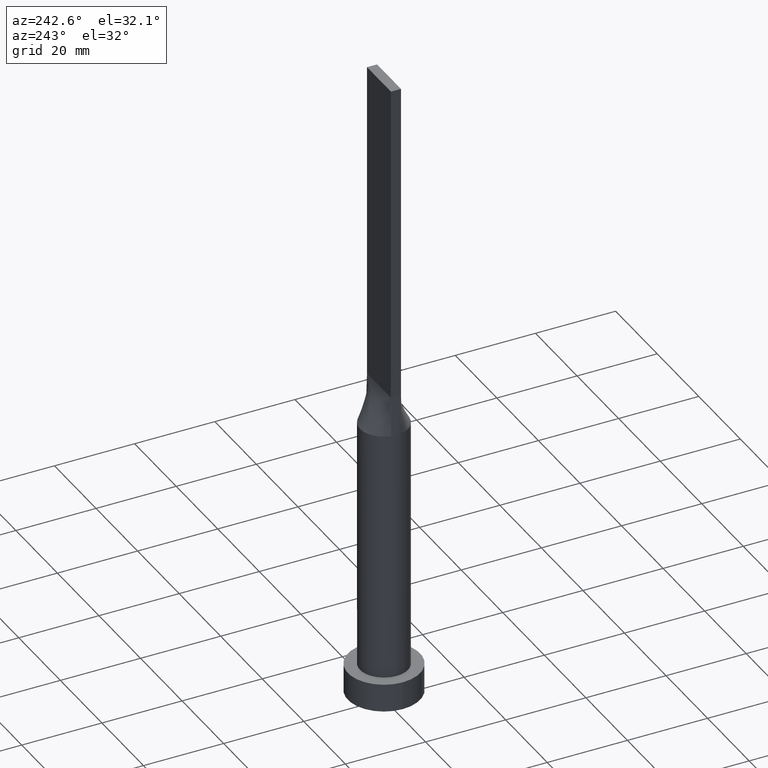
[diagram: clean part render]
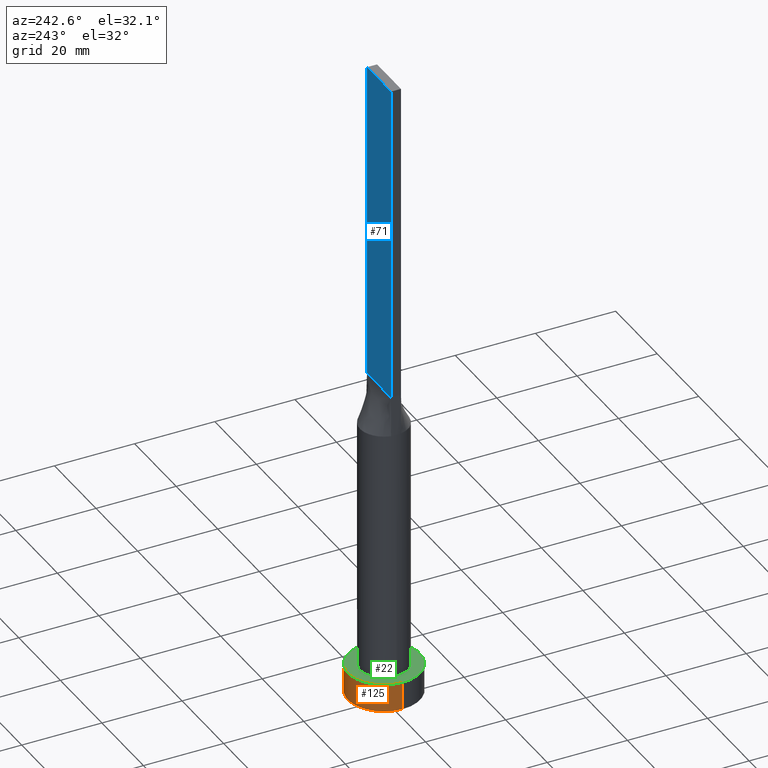
[diagram: same view with three faces highlighted in distinct colors, each labeled with its STEP entity id]
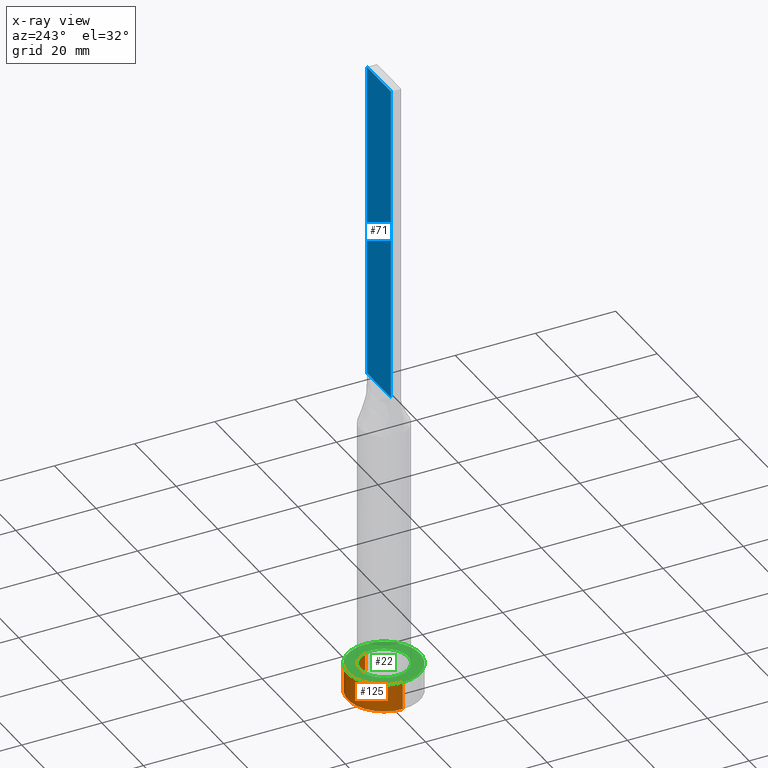
[diagram: x-ray of the same camera — body ghosted, the three highlighted faces saturated]
A machine part, auxiliary view with three faces highlighted in distinct colors.
The next image is the same camera in x-ray (body ghosted, the three faces saturated) — at least one of them is partly hidden behind the body in this view.
Their STEP definitions:

[orange] entity #125 — the highlighted cylindrical surface (partial cylindrical patch) has radius 9 mm, axis along (-0, -0, -1).
#9 = CYLINDRICAL_SURFACE ( 'NONE', #461, 9.000000000000000000 ) ;
#16 = FACE_OUTER_BOUND ( 'NONE', #287, .T. ) ;
#32 = DIRECTION ( 'NONE',  ( 1.000000000000000000, 0.000000000000000000, 0.000000000000000000 ) ) ;
#42 = EDGE_CURVE ( 'NONE', #53, #136, #576, .T. ) ;
#47 = ORIENTED_EDGE ( 'NONE', *, *, #234, .T. ) ;
#53 = VERTEX_POINT ( 'NONE', #471 ) ;
#89 = EDGE_CURVE ( 'NONE', #381, #53, #393, .T. ) ;
#119 = DIRECTION ( 'NONE',  ( -0.000000000000000000, -0.000000000000000000, -1.000000000000000000 ) ) ;
#125 = ADVANCED_FACE ( 'NONE', ( #16 ), #9, .T. ) ;
#136 = VERTEX_POINT ( 'NONE', #485 ) ;
#154 = DIRECTION ( 'NONE',  ( -0.000000000000000000, -0.000000000000000000, -1.000000000000000000 ) ) ;
#155 = LINE ( 'NONE', #337, #350 ) ;
#212 = CARTESIAN_POINT ( 'NONE',  ( -9.000000000000000000, 0.000000000000000000, 7.000000000000000000 ) ) ;
#234 = EDGE_CURVE ( 'NONE', #497, #136, #269, .T. ) ;
#269 = CIRCLE ( 'NONE', #555, 9.000000000000000000 ) ;
#287 = EDGE_LOOP ( 'NONE', ( #396, #582, #47, #595 ) ) ;
#300 = DIRECTION ( 'NONE',  ( -1.000000000000000000, 0.000000000000000000, 0.000000000000000000 ) ) ;
#337 = CARTESIAN_POINT ( 'NONE',  ( 9.000000000000000000, 1.102182119232617714E-15, 7.000000000000000000 ) ) ;
#339 = DIRECTION ( 'NONE',  ( 0.000000000000000000, 0.000000000000000000, 1.000000000000000000 ) ) ;
#340 = EDGE_CURVE ( 'NONE', #381, #497, #155, .T. ) ;
#344 = DIRECTION ( 'NONE',  ( 1.000000000000000000, 0.000000000000000000, 0.000000000000000000 ) ) ;
#350 = VECTOR ( 'NONE', #402, 1000.000000000000000 ) ;
#376 = VECTOR ( 'NONE', #154, 1000.000000000000000 ) ;
#381 = VERTEX_POINT ( 'NONE', #561 ) ;
#393 = CIRCLE ( 'NONE', #495, 9.000000000000000000 ) ;
#396 = ORIENTED_EDGE ( 'NONE', *, *, #89, .F. ) ;
#402 = DIRECTION ( 'NONE',  ( -0.000000000000000000, -0.000000000000000000, -1.000000000000000000 ) ) ;
#448 = DIRECTION ( 'NONE',  ( 0.000000000000000000, 0.000000000000000000, 1.000000000000000000 ) ) ;
#461 = AXIS2_PLACEMENT_3D ( 'NONE', #535, #119, #300 ) ;
#471 = CARTESIAN_POINT ( 'NONE',  ( -9.000000000000000000, 0.000000000000000000, 7.000000000000000000 ) ) ;
#485 = CARTESIAN_POINT ( 'NONE',  ( -9.000000000000000000, 0.000000000000000000, 0.000000000000000000 ) ) ;
#494 = CARTESIAN_POINT ( 'NONE',  ( 0.000000000000000000, 0.000000000000000000, 0.000000000000000000 ) ) ;
#495 = AXIS2_PLACEMENT_3D ( 'NONE', #521, #339, #344 ) ;
#497 = VERTEX_POINT ( 'NONE', #557 ) ;
#521 = CARTESIAN_POINT ( 'NONE',  ( 0.000000000000000000, 0.000000000000000000, 7.000000000000000000 ) ) ;
#535 = CARTESIAN_POINT ( 'NONE',  ( 0.000000000000000000, 0.000000000000000000, 7.000000000000000000 ) ) ;
#555 = AXIS2_PLACEMENT_3D ( 'NONE', #494, #448, #32 ) ;
#557 = CARTESIAN_POINT ( 'NONE',  ( 9.000000000000000000, 1.102182119232617714E-15, 0.000000000000000000 ) ) ;
#561 = CARTESIAN_POINT ( 'NONE',  ( 9.000000000000000000, 1.102182119232617714E-15, 7.000000000000000000 ) ) ;
#576 = LINE ( 'NONE', #212, #376 ) ;
#582 = ORIENTED_EDGE ( 'NONE', *, *, #340, .T. ) ;
#595 = ORIENTED_EDGE ( 'NONE', *, *, #42, .F. ) ;

[blue] entity #71 — the highlighted planar face has unit normal (0, -1, 0).
#24 = VERTEX_POINT ( 'NONE', #566 ) ;
#71 = ADVANCED_FACE ( 'NONE', ( #334 ), #524, .F. ) ;
#110 = DIRECTION ( 'NONE',  ( 0.000000000000000000, -0.000000000000000000, -1.000000000000000000 ) ) ;
#117 = VERTEX_POINT ( 'NONE', #429 ) ;
#140 = CARTESIAN_POINT ( 'NONE',  ( -5.750000000000000000, 1.250000000000000222, 160.0000000000000000 ) ) ;
#159 = AXIS2_PLACEMENT_3D ( 'NONE', #160, #209, #110 ) ;
#160 = CARTESIAN_POINT ( 'NONE',  ( 5.750000000000000000, 1.250000000000000222, 160.0000000000000000 ) ) ;
#167 = CARTESIAN_POINT ( 'NONE',  ( -5.750000000000000000, 1.250000000000000222, 80.00000000000000000 ) ) ;
#197 = VECTOR ( 'NONE', #387, 1000.000000000000000 ) ;
#198 = ORIENTED_EDGE ( 'NONE', *, *, #568, .F. ) ;
#209 = DIRECTION ( 'NONE',  ( 0.000000000000000000, -1.000000000000000000, 0.000000000000000000 ) ) ;
#226 = DIRECTION ( 'NONE',  ( -1.000000000000000000, 0.000000000000000000, 0.000000000000000000 ) ) ;
#227 = EDGE_CURVE ( 'NONE', #117, #419, #390, .T. ) ;
#228 = ORIENTED_EDGE ( 'NONE', *, *, #227, .F. ) ;
#230 = VECTOR ( 'NONE', #591, 1000.000000000000000 ) ;
#242 = EDGE_CURVE ( 'NONE', #117, #258, #539, .T. ) ;
#258 = VERTEX_POINT ( 'NONE', #543 ) ;
#273 = ORIENTED_EDGE ( 'NONE', *, *, #558, .T. ) ;
#293 = CARTESIAN_POINT ( 'NONE',  ( -5.750000000000000000, 1.250000000000000222, 160.0000000000000000 ) ) ;
#310 = CARTESIAN_POINT ( 'NONE',  ( 5.750000000000000000, 1.250000000000000222, 160.0000000000000000 ) ) ;
#334 = FACE_OUTER_BOUND ( 'NONE', #590, .T. ) ;
#387 = DIRECTION ( 'NONE',  ( -1.000000000000000000, -0.000000000000000000, -0.000000000000000000 ) ) ;
#390 = LINE ( 'NONE', #310, #548 ) ;
#419 = VERTEX_POINT ( 'NONE', #140 ) ;
#429 = CARTESIAN_POINT ( 'NONE',  ( 5.750000000000000000, 1.250000000000000222, 160.0000000000000000 ) ) ;
#433 = LINE ( 'NONE', #167, #197 ) ;
#465 = LINE ( 'NONE', #293, #587 ) ;
#524 = PLANE ( 'NONE',  #159 ) ;
#534 = CARTESIAN_POINT ( 'NONE',  ( 5.750000000000000000, 1.250000000000000222, 160.0000000000000000 ) ) ;
#539 = LINE ( 'NONE', #534, #230 ) ;
#543 = CARTESIAN_POINT ( 'NONE',  ( 5.750000000000000000, 1.250000000000000222, 80.00000000000000000 ) ) ;
#548 = VECTOR ( 'NONE', #226, 1000.000000000000000 ) ;
#558 = EDGE_CURVE ( 'NONE', #258, #24, #433, .T. ) ;
#566 = CARTESIAN_POINT ( 'NONE',  ( -5.750000000000000000, 1.250000000000000222, 80.00000000000000000 ) ) ;
#568 = EDGE_CURVE ( 'NONE', #419, #24, #465, .T. ) ;
#580 = DIRECTION ( 'NONE',  ( -0.000000000000000000, -0.000000000000000000, -1.000000000000000000 ) ) ;
#587 = VECTOR ( 'NONE', #580, 1000.000000000000000 ) ;
#590 = EDGE_LOOP ( 'NONE', ( #273, #198, #228, #601 ) ) ;
#591 = DIRECTION ( 'NONE',  ( -0.000000000000000000, -0.000000000000000000, -1.000000000000000000 ) ) ;
#601 = ORIENTED_EDGE ( 'NONE', *, *, #242, .T. ) ;

[green] entity #22 — the highlighted planar face has unit normal (0, 0, 1).
#17 = CARTESIAN_POINT ( 'NONE',  ( 0.000000000000000000, 0.000000000000000000, 7.000000000000000000 ) ) ;
#19 = CARTESIAN_POINT ( 'NONE',  ( 0.000000000000000000, 0.000000000000000000, 7.000000000000000000 ) ) ;
#22 = ADVANCED_FACE ( 'NONE', ( #432, #246 ), #563, .T. ) ;
#51 = AXIS2_PLACEMENT_3D ( 'NONE', #262, #498, #353 ) ;
#53 = VERTEX_POINT ( 'NONE', #471 ) ;
#85 = EDGE_CURVE ( 'NONE', #283, #90, #261, .T. ) ;
#89 = EDGE_CURVE ( 'NONE', #381, #53, #393, .T. ) ;
#90 = VERTEX_POINT ( 'NONE', #106 ) ;
#106 = CARTESIAN_POINT ( 'NONE',  ( 6.000000000000000888, 7.347880794884120722E-16, 7.000000000000000000 ) ) ;
#124 = CIRCLE ( 'NONE', #452, 6.000000000000000888 ) ;
#142 = AXIS2_PLACEMENT_3D ( 'NONE', #19, #292, #572 ) ;
#175 = EDGE_LOOP ( 'NONE', ( #467, #322 ) ) ;
#207 = EDGE_CURVE ( 'NONE', #53, #381, #407, .T. ) ;
#215 = CARTESIAN_POINT ( 'NONE',  ( -6.000000000000000888, 0.000000000000000000, 7.000000000000000000 ) ) ;
#246 = FACE_OUTER_BOUND ( 'NONE', #546, .T. ) ;
#249 = DIRECTION ( 'NONE',  ( 0.000000000000000000, 0.000000000000000000, 1.000000000000000000 ) ) ;
#261 = CIRCLE ( 'NONE', #142, 6.000000000000000888 ) ;
#262 = CARTESIAN_POINT ( 'NONE',  ( 0.000000000000000000, 0.000000000000000000, 7.000000000000000000 ) ) ;
#283 = VERTEX_POINT ( 'NONE', #215 ) ;
#285 = CARTESIAN_POINT ( 'NONE',  ( 0.000000000000000000, 0.000000000000000000, 7.000000000000000000 ) ) ;
#292 = DIRECTION ( 'NONE',  ( 0.000000000000000000, 0.000000000000000000, 1.000000000000000000 ) ) ;
#295 = DIRECTION ( 'NONE',  ( 0.000000000000000000, 0.000000000000000000, 1.000000000000000000 ) ) ;
#322 = ORIENTED_EDGE ( 'NONE', *, *, #547, .F. ) ;
#339 = DIRECTION ( 'NONE',  ( 0.000000000000000000, 0.000000000000000000, 1.000000000000000000 ) ) ;
#344 = DIRECTION ( 'NONE',  ( 1.000000000000000000, 0.000000000000000000, 0.000000000000000000 ) ) ;
#353 = DIRECTION ( 'NONE',  ( 1.000000000000000000, 0.000000000000000000, 0.000000000000000000 ) ) ;
#370 = ORIENTED_EDGE ( 'NONE', *, *, #89, .T. ) ;
#381 = VERTEX_POINT ( 'NONE', #561 ) ;
#393 = CIRCLE ( 'NONE', #495, 9.000000000000000000 ) ;
#407 = CIRCLE ( 'NONE', #51, 9.000000000000000000 ) ;
#426 = DIRECTION ( 'NONE',  ( 1.000000000000000000, 0.000000000000000000, -0.000000000000000000 ) ) ;
#428 = DIRECTION ( 'NONE',  ( 1.000000000000000000, 0.000000000000000000, 0.000000000000000000 ) ) ;
#432 = FACE_BOUND ( 'NONE', #175, .T. ) ;
#452 = AXIS2_PLACEMENT_3D ( 'NONE', #17, #249, #428 ) ;
#467 = ORIENTED_EDGE ( 'NONE', *, *, #85, .F. ) ;
#471 = CARTESIAN_POINT ( 'NONE',  ( -9.000000000000000000, 0.000000000000000000, 7.000000000000000000 ) ) ;
#495 = AXIS2_PLACEMENT_3D ( 'NONE', #521, #339, #344 ) ;
#498 = DIRECTION ( 'NONE',  ( 0.000000000000000000, 0.000000000000000000, 1.000000000000000000 ) ) ;
#519 = AXIS2_PLACEMENT_3D ( 'NONE', #285, #295, #426 ) ;
#521 = CARTESIAN_POINT ( 'NONE',  ( 0.000000000000000000, 0.000000000000000000, 7.000000000000000000 ) ) ;
#542 = ORIENTED_EDGE ( 'NONE', *, *, #207, .T. ) ;
#546 = EDGE_LOOP ( 'NONE', ( #542, #370 ) ) ;
#547 = EDGE_CURVE ( 'NONE', #90, #283, #124, .T. ) ;
#561 = CARTESIAN_POINT ( 'NONE',  ( 9.000000000000000000, 1.102182119232617714E-15, 7.000000000000000000 ) ) ;
#563 = PLANE ( 'NONE',  #519 ) ;
#572 = DIRECTION ( 'NONE',  ( 1.000000000000000000, 0.000000000000000000, 0.000000000000000000 ) ) ;